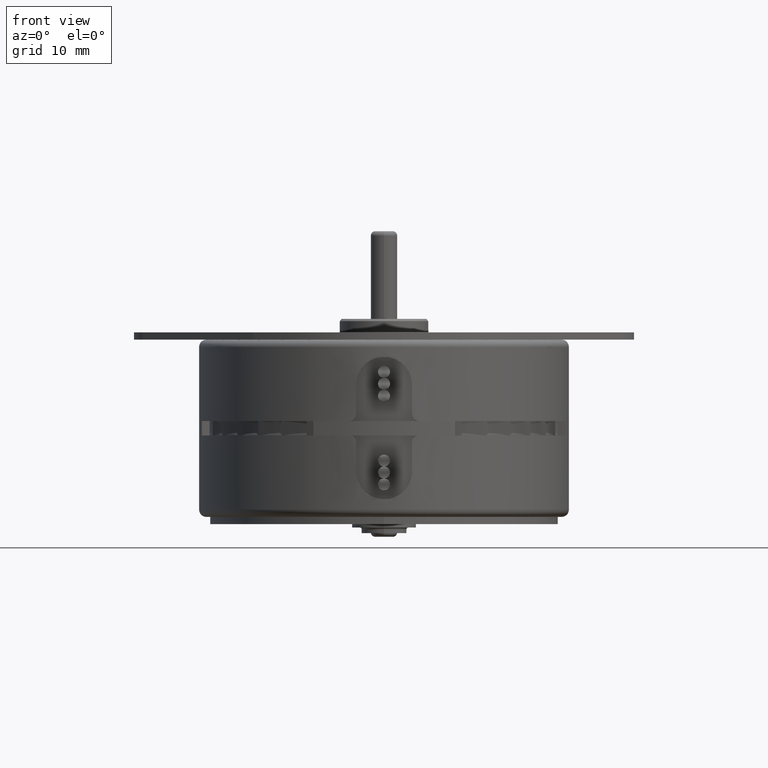
[diagram: clean part render]
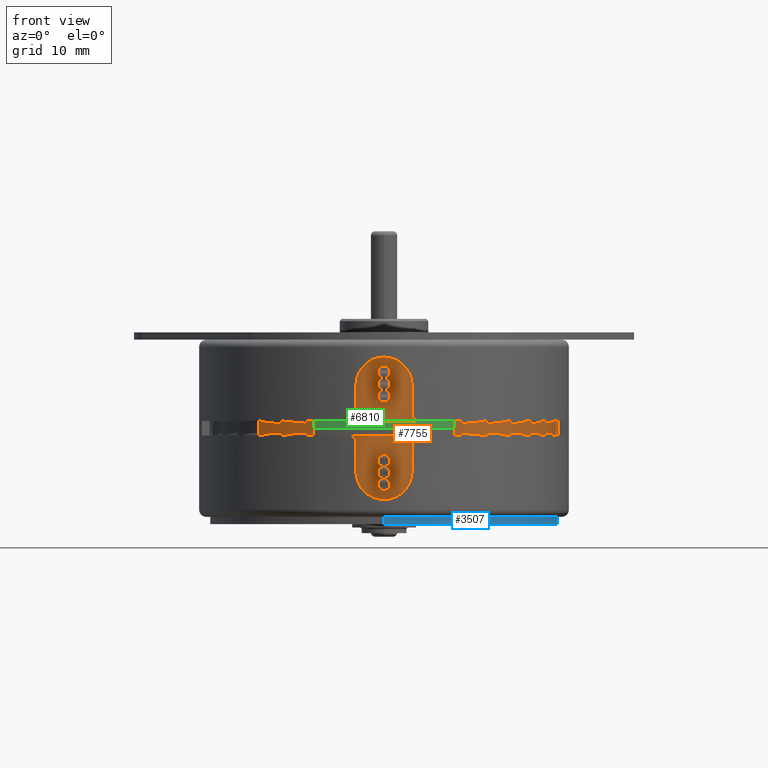
[diagram: same view with three faces highlighted in distinct colors, each labeled with its STEP entity id]
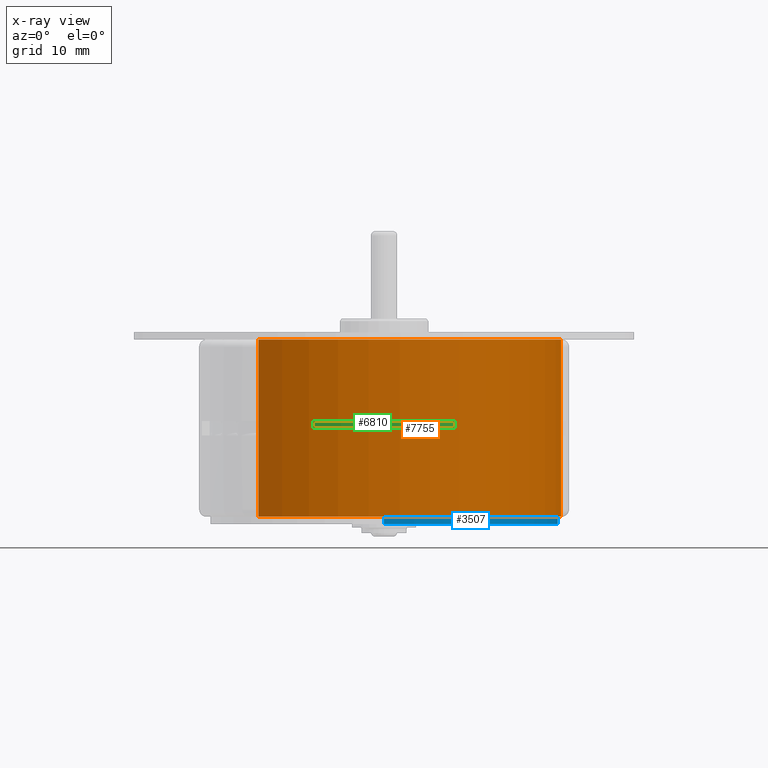
[diagram: x-ray of the same camera — body ghosted, the three highlighted faces saturated]
A machine part, front view with three faces highlighted in distinct colors.
The next image is the same camera in x-ray (body ghosted, the three faces saturated) — at least one of them is partly hidden behind the body in this view.
Their STEP definitions:

[orange] entity #7755 — the highlighted cylindrical surface (partial cylindrical patch) has radius 20.0635 mm, axis along (0, 0, -1).
#7685=CARTESIAN_POINT('',(0.E0,0.E0,-3.2E-2));
#7686=DIRECTION('',(0.E0,0.E0,-1.E0));
#7687=DIRECTION('',(7.071067811865E-1,7.071067811865E-1,0.E0));
#7688=AXIS2_PLACEMENT_3D('',#7685,#7686,#7687);
#7690=DIRECTION('',(0.E0,0.E0,1.E0));
#7691=VECTOR('',#7690,7.88E-1);
#7692=CARTESIAN_POINT('',(5.585436464593E-1,5.585436464593E-1,-8.2E-1));
#7693=LINE('',#7692,#7691);
#7694=DIRECTION('',(0.E0,0.E0,1.E0));
#7695=VECTOR('',#7694,7.88E-1);
#7696=CARTESIAN_POINT('',(-5.585436464593E-1,-5.585436464593E-1,-8.2E-1));
#7697=LINE('',#7696,#7695);
#7703=CARTESIAN_POINT('',(0.E0,0.E0,-8.2E-1));
#7704=DIRECTION('',(0.E0,0.E0,1.E0));
#7705=DIRECTION('',(-7.071067811865E-1,-7.071067811865E-1,0.E0));
#7706=AXIS2_PLACEMENT_3D('',#7703,#7704,#7705);
#7708=CARTESIAN_POINT('',(-5.585436464593E-1,-5.585436464593E-1,-3.2E-2));
#7709=CARTESIAN_POINT('',(5.585436464593E-1,5.585436464593E-1,-3.2E-2));
#7710=VERTEX_POINT('',#7708);
#7711=VERTEX_POINT('',#7709);
#7712=CARTESIAN_POINT('',(-5.585436464593E-1,-5.585436464593E-1,-8.2E-1));
#7713=VERTEX_POINT('',#7712);
#7714=CARTESIAN_POINT('',(5.585436464593E-1,5.585436464593E-1,-8.2E-1));
#7715=VERTEX_POINT('',#7714);
#7743=CARTESIAN_POINT('',(0.E0,0.E0,-3.2E-2));
#7744=DIRECTION('',(0.E0,0.E0,-1.E0));
#7745=DIRECTION('',(-7.071067811865E-1,-7.071067811865E-1,0.E0));
#7746=AXIS2_PLACEMENT_3D('',#7743,#7744,#7745);
#7747=CYLINDRICAL_SURFACE('',#7746,7.899E-1);
#7748=ORIENTED_EDGE('',*,*,#7723,.F.);
#7749=ORIENTED_EDGE('',*,*,#7738,.F.);
#7751=ORIENTED_EDGE('',*,*,#7750,.F.);
#7752=ORIENTED_EDGE('',*,*,#7734,.T.);
#7753=EDGE_LOOP('',(#7748,#7749,#7751,#7752));
#7754=FACE_OUTER_BOUND('',#7753,.F.);
#7755=ADVANCED_FACE('',(#7754),#7747,.T.);
#7689=CIRCLE('',#7688,7.899E-1);
#7707=CIRCLE('',#7706,7.899E-1);
#7723=EDGE_CURVE('',#7711,#7710,#7689,.T.);
#7734=EDGE_CURVE('',#7713,#7710,#7697,.T.);
#7738=EDGE_CURVE('',#7715,#7711,#7693,.T.);
#7750=EDGE_CURVE('',#7713,#7715,#7707,.T.);

[blue] entity #3507 — the highlighted cylindrical surface (partial cylindrical patch) has radius 19.6215 mm, axis along (0, 0, -1).
#3137=CARTESIAN_POINT('',(0.E0,0.E0,0.E0));
#3138=DIRECTION('',(0.E0,0.E0,1.E0));
#3139=DIRECTION('',(-1.E0,0.E0,0.E0));
#3140=AXIS2_PLACEMENT_3D('',#3137,#3138,#3139);
#3202=DIRECTION('',(0.E0,0.E0,-1.E0));
#3203=VECTOR('',#3202,3.2E-2);
#3204=CARTESIAN_POINT('',(-7.725E-1,0.E0,3.2E-2));
#3205=LINE('',#3204,#3203);
#3206=DIRECTION('',(0.E0,0.E0,-1.E0));
#3207=VECTOR('',#3206,3.2E-2);
#3208=CARTESIAN_POINT('',(7.725E-1,0.E0,3.2E-2));
#3209=LINE('',#3208,#3207);
#3215=CARTESIAN_POINT('',(0.E0,0.E0,3.2E-2));
#3216=DIRECTION('',(0.E0,0.E0,-1.E0));
#3217=DIRECTION('',(1.E0,0.E0,0.E0));
#3218=AXIS2_PLACEMENT_3D('',#3215,#3216,#3217);
#3364=CARTESIAN_POINT('',(7.725E-1,0.E0,0.E0));
#3365=CARTESIAN_POINT('',(-7.725E-1,0.E0,0.E0));
#3366=VERTEX_POINT('',#3364);
#3367=VERTEX_POINT('',#3365);
#3392=CARTESIAN_POINT('',(7.725E-1,0.E0,3.2E-2));
#3393=VERTEX_POINT('',#3392);
#3394=CARTESIAN_POINT('',(-7.725E-1,0.E0,3.2E-2));
#3395=VERTEX_POINT('',#3394);
#3495=CARTESIAN_POINT('',(0.E0,0.E0,0.E0));
#3496=DIRECTION('',(0.E0,0.E0,1.E0));
#3497=DIRECTION('',(1.E0,0.E0,0.E0));
#3498=AXIS2_PLACEMENT_3D('',#3495,#3496,#3497);
#3499=CYLINDRICAL_SURFACE('',#3498,7.725E-1);
#3500=ORIENTED_EDGE('',*,*,#3439,.F.);
#3501=ORIENTED_EDGE('',*,*,#3490,.F.);
#3503=ORIENTED_EDGE('',*,*,#3502,.F.);
#3504=ORIENTED_EDGE('',*,*,#3486,.T.);
#3505=EDGE_LOOP('',(#3500,#3501,#3503,#3504));
#3506=FACE_OUTER_BOUND('',#3505,.F.);
#3507=ADVANCED_FACE('',(#3506),#3499,.T.);
#3141=CIRCLE('',#3140,7.725E-1);
#3219=CIRCLE('',#3218,7.725E-1);
#3439=EDGE_CURVE('',#3367,#3366,#3141,.T.);
#3486=EDGE_CURVE('',#3393,#3366,#3209,.T.);
#3490=EDGE_CURVE('',#3395,#3367,#3205,.T.);
#3502=EDGE_CURVE('',#3393,#3395,#3219,.T.);

[green] entity #6810 — the highlighted cylindrical surface (partial cylindrical patch) has radius 20.8788 mm, axis along (0, 0, -1).
#4152=CARTESIAN_POINT('',(0.E0,0.E0,0.E0));
#4153=DIRECTION('',(1.E0,0.E0,0.E0));
#4154=DIRECTION('',(0.E0,9.238581663185E-1,-3.827350108451E-1));
#4155=AXIS2_PLACEMENT_3D('',#4152,#4153,#4154);
#4766=CARTESIAN_POINT('',(3.2E-2,0.E0,0.E0));
#4767=DIRECTION('',(-1.E0,0.E0,0.E0));
#4768=DIRECTION('',(0.E0,9.238581663185E-1,3.827350108452E-1));
#4769=AXIS2_PLACEMENT_3D('',#4766,#4767,#4768);
#4780=DIRECTION('',(-1.E0,0.E0,0.E0));
#4781=VECTOR('',#4780,3.2E-2);
#4782=CARTESIAN_POINT('',(3.2E-2,7.594114127138E-1,3.146081789147E-1));
#4783=LINE('',#4782,#4781);
#4784=DIRECTION('',(1.E0,0.E0,0.E0));
#4785=VECTOR('',#4784,3.2E-2);
#4786=CARTESIAN_POINT('',(0.E0,7.594114127138E-1,-3.146081789147E-1));
#4787=LINE('',#4786,#4785);
#5612=CARTESIAN_POINT('',(0.E0,7.594114127138E-1,3.146081789147E-1));
#5613=VERTEX_POINT('',#5612);
#5614=CARTESIAN_POINT('',(3.2E-2,7.594114127138E-1,3.146081789147E-1));
#5615=VERTEX_POINT('',#5614);
#5618=CARTESIAN_POINT('',(0.E0,7.594114127138E-1,-3.146081789147E-1));
#5619=VERTEX_POINT('',#5618);
#5624=CARTESIAN_POINT('',(3.2E-2,7.594114127138E-1,-3.146081789147E-1));
#5625=VERTEX_POINT('',#5624);
#6799=CARTESIAN_POINT('',(3.2E-2,0.E0,0.E0));
#6800=DIRECTION('',(-1.E0,0.E0,0.E0));
#6801=DIRECTION('',(0.E0,0.E0,-1.E0));
#6802=AXIS2_PLACEMENT_3D('',#6799,#6800,#6801);
#6803=CYLINDRICAL_SURFACE('',#6802,8.22E-1);
#6804=ORIENTED_EDGE('',*,*,#6792,.F.);
#6805=ORIENTED_EDGE('',*,*,#6006,.T.);
#6806=ORIENTED_EDGE('',*,*,#6023,.F.);
#6807=ORIENTED_EDGE('',*,*,#6040,.T.);
#6808=EDGE_LOOP('',(#6804,#6805,#6806,#6807));
#6809=FACE_OUTER_BOUND('',#6808,.F.);
#6810=ADVANCED_FACE('',(#6809),#6803,.T.);
#4156=CIRCLE('',#4155,8.22E-1);
#4770=CIRCLE('',#4769,8.22E-1);
#6006=EDGE_CURVE('',#5615,#5613,#4783,.T.);
#6023=EDGE_CURVE('',#5619,#5613,#4156,.T.);
#6040=EDGE_CURVE('',#5619,#5625,#4787,.T.);
#6792=EDGE_CURVE('',#5615,#5625,#4770,.T.);